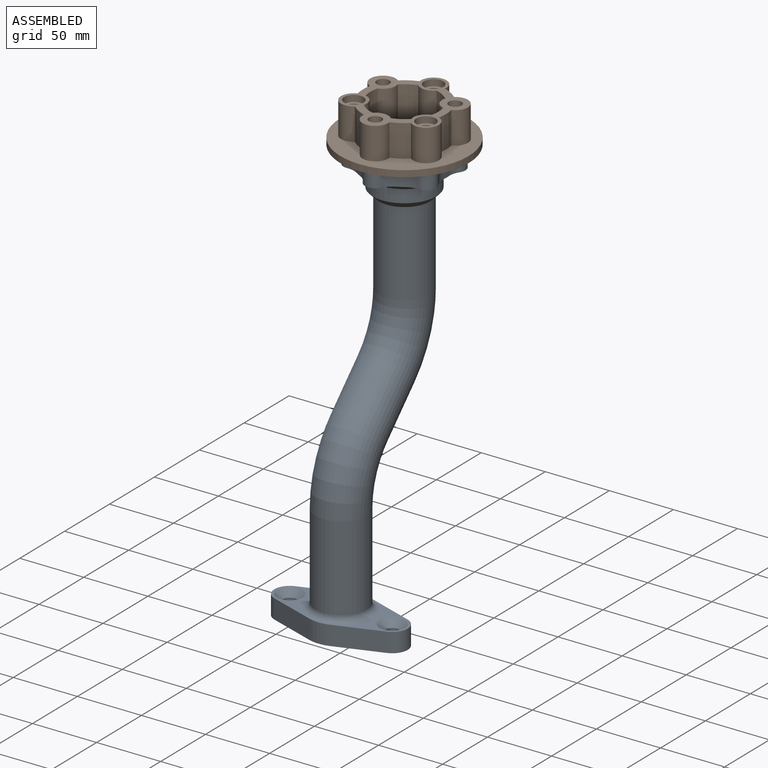
[diagram: assembled view]
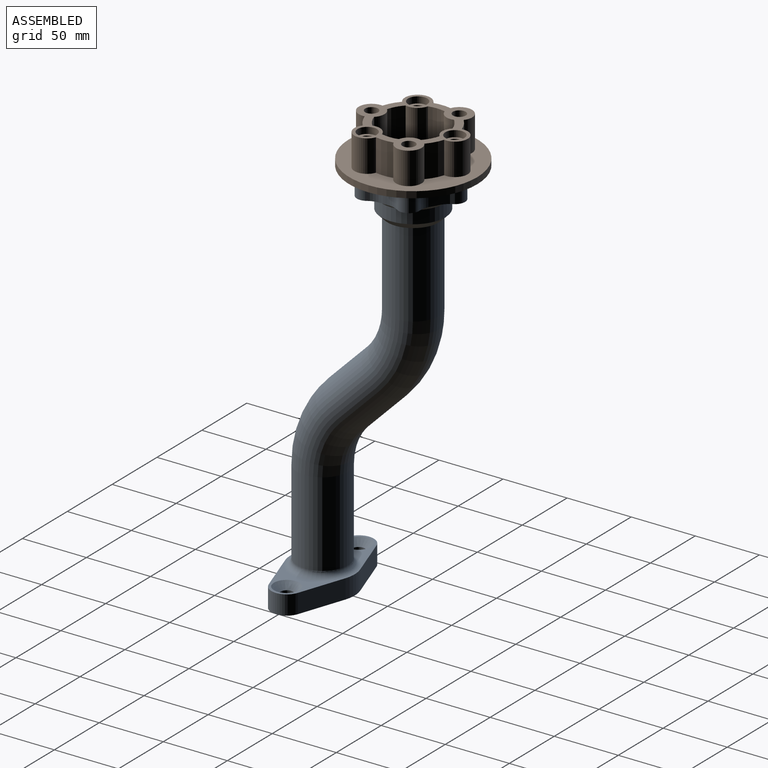
[diagram: assembled view, second angle]
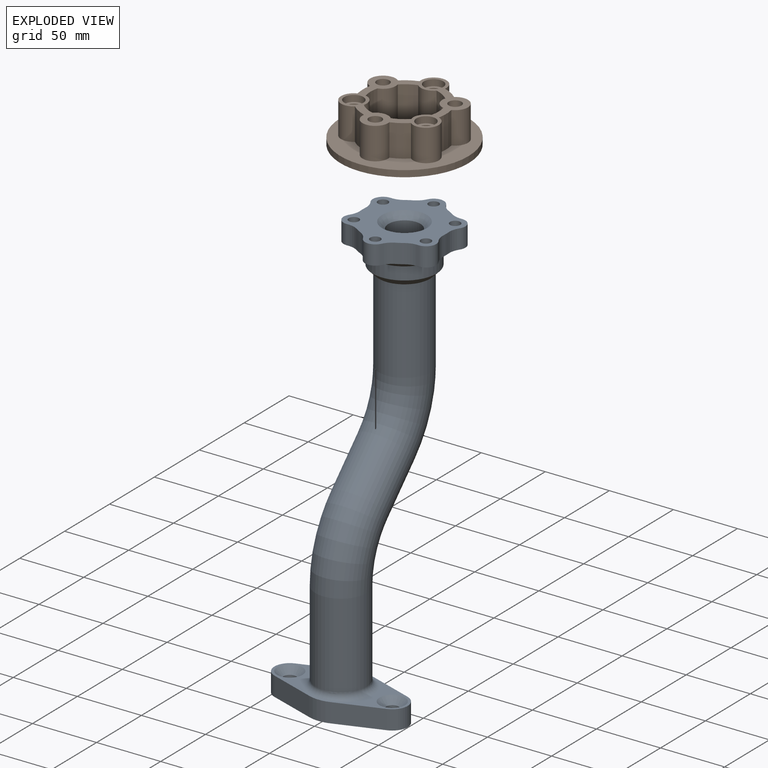
[diagram: exploded view]
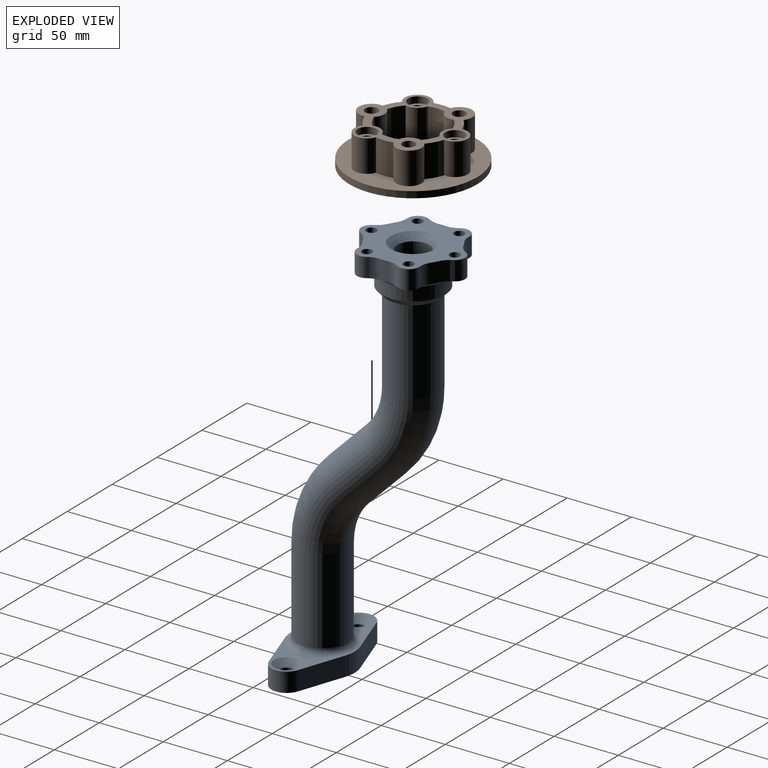
[diagram: exploded view, second angle]
ASSEMBLY  parts=2 mates=3
PART A: 63 faces, bbox 104x142.1x315.7 mm
  f0: plane 47.29x43.88mm, normal (0,0,1), area 489.2mm2, adj f1,f7,f11,f39,f41
  f1: plane 35.78x15mm, normal (-0.32,-0.95,0), area 567.4mm2, adj f0,f2,f11,f13
  f2: cylinder r=25mm len=16.25mm, axis (0,0,-1), area 248.3mm2, adj f1,f3,f13,f39
  f3: plane 35.78x15mm, normal (0.32,-0.95,0), area 567.4mm2, adj f2,f4,f12,f13
  f4: cylinder r=12mm len=22.7mm, axis (0,0,-1), area 446.3mm2, adj f3,f5,f12,f13
  f5: plane 35.78x15mm, normal (0.32,0.95,0), area 567.4mm2, adj f4,f6,f12,f13
  f6: cylinder r=25mm len=16.25mm, axis (0,0,-1), area 248.3mm2, adj f5,f7,f13,f39
  f7: plane 35.78x15mm, normal (-0.32,0.95,0), area 567.4mm2, adj f0,f6,f11,f13
  f8: cylinder r=5mm len=10mm, axis (0,0,-1), area 314.2mm2, adj f13,f41
  f9: cylinder r=5mm len=10mm, axis (0,0,-1), area 314.2mm2, adj f13,f40
  f10: cylinder r=12.5mm len=81.01mm, axis (0,0,-1), area 6362.1mm2, adj f14,f61
  f11: cylinder r=12mm len=22.7mm, axis (0,0,-1), area 446.3mm2, adj f0,f1,f7,f13
  f12: plane 47.29x43.88mm, normal (0,0,1), area 489.2mm2, adj f3,f4,f5,f39,f40
  f13: plane 104x50mm, normal (0,0,-1), area 2450.9mm2, adj f1,f2,f3,f4,f5,f6,f7,f8
  f14: torus R=70mm, axis (-1,0,0), area 4318mm2, adj f10,f15
  f15: cylinder r=12.5mm len=47.38mm, axis (0,0.71,0.71), area 3299.5mm2, adj f14,f16
  f16: torus R=70mm, axis (1,0,0), area 4318mm2, adj f15,f17
  f17: cylinder r=12.5mm len=96.01mm, axis (0,0,1), area 7540.2mm2, adj f16,f60
  f18: cylinder r=20mm len=66.01mm, axis (0,0,1), area 8294.4mm2, adj f19,f39
  f19: torus R=70mm, axis (-1,0,0), area 6908.7mm2, adj f18,f20
  f20: cylinder r=20mm len=57.99mm, axis (0,0.71,0.71), area 5279.1mm2, adj f19,f21
  f21: torus R=70mm, axis (1,0,0), area 6908.7mm2, adj f20,f22
  f22: cylinder r=20mm len=66.01mm, axis (0,0,1), area 8294.4mm2, adj f21,f38
  f23: cylinder r=25mm len=50mm, axis (0,0,-1), area 1570.8mm2, adj f38,f62
  f24: cylinder r=8mm len=15mm, axis (0,0,-1), area 265.3mm2, adj f36,f37,f48,f59
  f25: cylinder r=32.5mm len=15mm, axis (0,0,-1), area 74.2mm2, adj f36,f37,f48,f49
  f26: cylinder r=8mm len=15mm, axis (0,0,-1), area 265.3mm2, adj f36,f37,f49,f50
  f27: cylinder r=32.5mm len=15mm, axis (0,0,-1), area 74.2mm2, adj f36,f37,f50,f51
  f28: cylinder r=8mm len=15mm, axis (0,0,-1), area 265.3mm2, adj f36,f37,f51,f52
  f29: cylinder r=32.5mm len=15mm, axis (0,0,-1), area 74.2mm2, adj f36,f37,f52,f53
  f30: cylinder r=8mm len=15mm, axis (0,0,-1), area 265.3mm2, adj f36,f37,f53,f54
  f31: cylinder r=32.5mm len=15mm, axis (0,0,-1), area 74.2mm2, adj f36,f37,f54,f55
  f32: cylinder r=8mm len=15mm, axis (0,0,-1), area 265.3mm2, adj f36,f37,f55,f56
  f33: cylinder r=32.5mm len=15mm, axis (0,0,-1), area 74.2mm2, adj f36,f37,f56,f57
  f34: cylinder r=8mm len=15mm, axis (0,0,-1), area 265.3mm2, adj f36,f37,f57,f58
  f35: cylinder r=32.5mm len=15mm, axis (0,0,-1), area 74.2mm2, adj f36,f37,f58,f59
  f36: plane 81x72.29mm, normal (0,0,1), area 2762.9mm2, adj f24,f25,f26,f27,f28,f29,f30,f31
  f37: plane 81x72.29mm, normal (0,0,-1), area 934.8mm2, adj f24,f25,f26,f27,f28,f29,f30,f31
  f38: cone r=25mm half-angle=45deg, axis (0,0,1), area 999.6mm2, adj f22,f23
  f39: torus R=25mm, axis (0,0,1), area 1076.6mm2, adj f0,f2,f6,f12,f18
  f40: cone r=5mm half-angle=45deg, axis (0,0,1), area 333.2mm2, adj f9,f12
  f41: cone r=5mm half-angle=45deg, axis (0,0,1), area 333.2mm2, adj f0,f8
  f42: cylinder r=4mm len=16.5mm, axis (0,0,1), area 383.6mm2, adj f36,f37,f62
  f43: cylinder r=4mm len=16.5mm, axis (0,0,1), area 383.6mm2, adj f36,f37,f62
  f44: cylinder r=4mm len=16.5mm, axis (0,0,1), area 383.6mm2, adj f36,f37,f62
  f45: cylinder r=4mm len=16.5mm, axis (0,0,1), area 383.6mm2, adj f36,f37,f62
  f46: cylinder r=4mm len=16.5mm, axis (0,0,1), area 383.6mm2, adj f36,f37,f62
  f47: cylinder r=4mm len=16.5mm, axis (0,0,1), area 383.6mm2, adj f36,f37,f62
  f48: cylinder r=15mm len=15mm, axis (0,0,1), area 148mm2, adj f24,f25,f36,f37
  f49: cylinder r=15mm len=15mm, axis (0,0,1), area 148mm2, adj f25,f26,f36,f37
  f50: cylinder r=15mm len=15mm, axis (0,0,1), area 148mm2, adj f26,f27,f36,f37
  f51: cylinder r=15mm len=15mm, axis (0,0,1), area 148mm2, adj f27,f28,f36,f37
  f52: cylinder r=15mm len=15mm, axis (0,0,1), area 148mm2, adj f28,f29,f36,f37
  f53: cylinder r=15mm len=15mm, axis (0,0,1), area 148mm2, adj f29,f30,f36,f37
  f54: cylinder r=15mm len=15mm, axis (0,0,1), area 148mm2, adj f30,f31,f36,f37
  f55: cylinder r=15mm len=15mm, axis (0,0,1), area 148mm2, adj f31,f32,f36,f37
  f56: cylinder r=15mm len=15mm, axis (0,0,1), area 148mm2, adj f32,f33,f36,f37
  f57: cylinder r=15mm len=15mm, axis (0,0,1), area 148mm2, adj f33,f34,f36,f37
  f58: cylinder r=15mm len=15mm, axis (0,0,1), area 148mm2, adj f34,f35,f36,f37
  f59: cylinder r=15mm len=15mm, axis (0,0,1), area 148mm2, adj f24,f35,f36,f37
  f60: cone r=12.5mm half-angle=45deg, axis (0,0,1), area 666.4mm2, adj f17,f36
  f61: cone r=17.5mm half-angle=45deg, axis (0,0,-1), area 666.4mm2, adj f10,f13
  f62: cone r=30mm half-angle=45deg, axis (0,0,1), area 1169.1mm2, adj f23,f37,f42,f43,f44,f45,f46,f47
PART B: 42 faces, bbox 100x100x30 mm
  f0: cylinder r=5mm len=25mm, axis (0,0,1), area 785.4mm2, adj f18,f40
  f1: cylinder r=5mm len=25mm, axis (0,0,1), area 785.4mm2, adj f18,f38
  f2: cylinder r=5mm len=25mm, axis (0,0,1), area 785.4mm2, adj f18,f36
  f3: plane 100x100mm, normal (0,0,1), area 3531.5mm2, adj f6,f7,f10,f12,f14,f16,f17,f20
  f4: cylinder r=26.5mm len=25mm, axis (0,0,-1), area 331.4mm2, adj f8,f19,f29,f31
  f5: cylinder r=26.5mm len=25mm, axis (0,0,-1), area 331.4mm2, adj f8,f19,f21,f31
  f6: cylinder r=32.5mm len=25mm, axis (0,0,-1), area 348.9mm2, adj f3,f19,f28,f30
  f7: cylinder r=32.5mm len=25mm, axis (0,0,-1), area 348.9mm2, adj f3,f19,f20,f30
  f8: plane 53x51.03mm, normal (0,0,1), area 1433.7mm2, adj f4,f5,f9,f11,f13,f15,f21,f23
  f9: cylinder r=26.5mm len=25mm, axis (0,0,-1), area 331.4mm2, adj f8,f19,f27,f29
  f10: cylinder r=32.5mm len=25mm, axis (0,0,-1), area 348.9mm2, adj f3,f19,f26,f28
  f11: cylinder r=26.5mm len=25mm, axis (0,0,-1), area 331.4mm2, adj f8,f19,f25,f27
  f12: cylinder r=32.5mm len=25mm, axis (0,0,-1), area 348.9mm2, adj f3,f19,f24,f26
  f13: cylinder r=26.5mm len=25mm, axis (0,0,-1), area 331.4mm2, adj f8,f19,f23,f25
  f14: cylinder r=32.5mm len=25mm, axis (0,0,-1), area 348.9mm2, adj f3,f19,f22,f24
  f15: cylinder r=26.5mm len=25mm, axis (0,0,-1), area 331.4mm2, adj f8,f19,f21,f23
  f16: cylinder r=32.5mm len=25mm, axis (0,0,-1), area 348.9mm2, adj f3,f19,f20,f22
  f17: cylinder r=50mm len=100mm, axis (0,0,-1), area 1570.8mm2, adj f3,f18
  f18: plane 100x100mm, normal (0,0,-1), area 6845.4mm2, adj f0,f1,f2,f17,f32,f33,f34,f35
  f19: plane 85x76.29mm, normal (0,0,1), area 1585.7mm2, adj f4,f5,f6,f7,f9,f10,f11,f12
  f20: cylinder r=10mm len=25mm, axis (0,0,-1), area 862.6mm2, adj f3,f7,f16,f19
  f21: cylinder r=10mm len=25mm, axis (0,0,-1), area 398.8mm2, adj f5,f8,f15,f19
  f22: cylinder r=10mm len=25mm, axis (0,0,-1), area 862.6mm2, adj f3,f14,f16,f19
  f23: cylinder r=10mm len=25mm, axis (0,0,-1), area 398.8mm2, adj f8,f13,f15,f19
  f24: cylinder r=10mm len=25mm, axis (0,0,-1), area 862.6mm2, adj f3,f12,f14,f19
  f25: cylinder r=10mm len=25mm, axis (0,0,-1), area 398.8mm2, adj f8,f11,f13,f19
  f26: cylinder r=10mm len=25mm, axis (0,0,-1), area 862.6mm2, adj f3,f10,f12,f19
  f27: cylinder r=10mm len=25mm, axis (0,0,-1), area 398.8mm2, adj f8,f9,f11,f19
  f28: cylinder r=10mm len=25mm, axis (0,0,-1), area 862.6mm2, adj f3,f6,f10,f19
  f29: cylinder r=10mm len=25mm, axis (0,0,-1), area 398.8mm2, adj f4,f8,f9,f19
  f30: cylinder r=10mm len=25mm, axis (0,0,-1), area 862.6mm2, adj f3,f6,f7,f19
  f31: cylinder r=10mm len=25mm, axis (0,0,-1), area 398.8mm2, adj f4,f5,f8,f19
  f32: cylinder r=5mm len=30mm, axis (0,0,1), area 942.5mm2, adj f18,f19
  f33: cylinder r=5mm len=30mm, axis (0,0,1), area 942.5mm2, adj f18,f19
  f34: cylinder r=5mm len=30mm, axis (0,0,1), area 942.5mm2, adj f18,f19
  f35: cylinder r=13.08mm len=26.16mm, axis (0,0,1), area 410.9mm2, adj f8,f18
  f36: plane 15x15mm, normal (0,0,1), area 98.2mm2, adj f2,f37
  f37: cylinder r=7.5mm len=15mm, axis (0,0,1), area 235.6mm2, adj f19,f36
  f38: plane 15x15mm, normal (0,0,1), area 98.2mm2, adj f1,f39
  f39: cylinder r=7.5mm len=15mm, axis (0,0,1), area 235.6mm2, adj f19,f38
  f40: plane 15x15mm, normal (0,0,1), area 98.2mm2, adj f0,f41
  f41: cylinder r=7.5mm len=15mm, axis (0,0,1), area 235.6mm2, adj f19,f40
PLACE A t=(-195.17,-77.28,-18.29)mm fixed
PLACE B rot(axis=(0,0,-1),90deg) t=(-195.17,-6.57,297.42)mm
MATE planar B.f33 <-> A.f17  axis (0,0,-1) through (-195.17,-39.07,297.42)mm
MATE cylindrical A.f28 <-> B.f1  axis (0,0,-1) through (-223.31,-22.82,282.42)mm
MATE cylindrical B.f35 <-> A.f17  axis (0,0,1) through (-195.17,-6.57,299.92)mm
